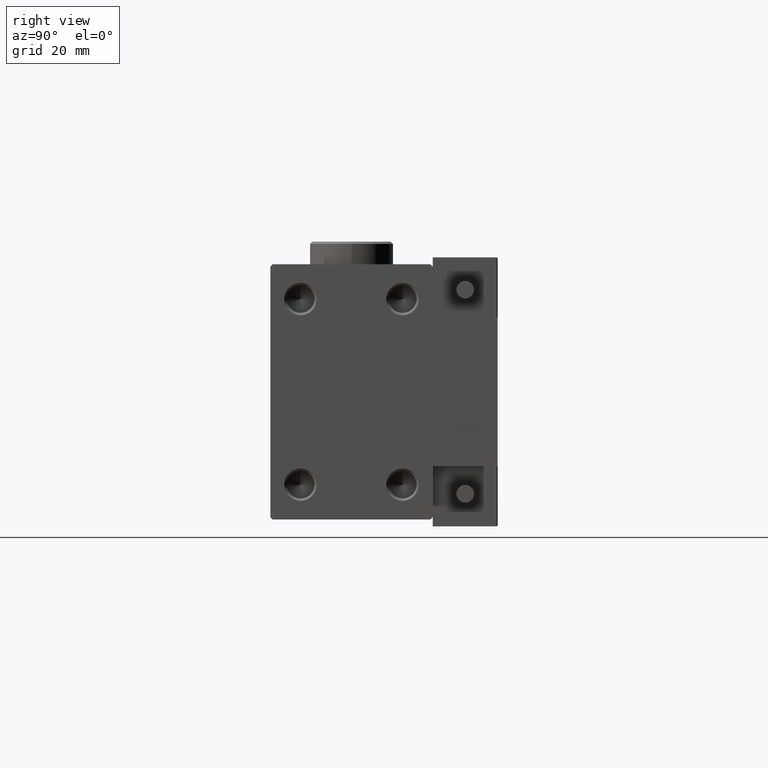
[diagram: clean part render]
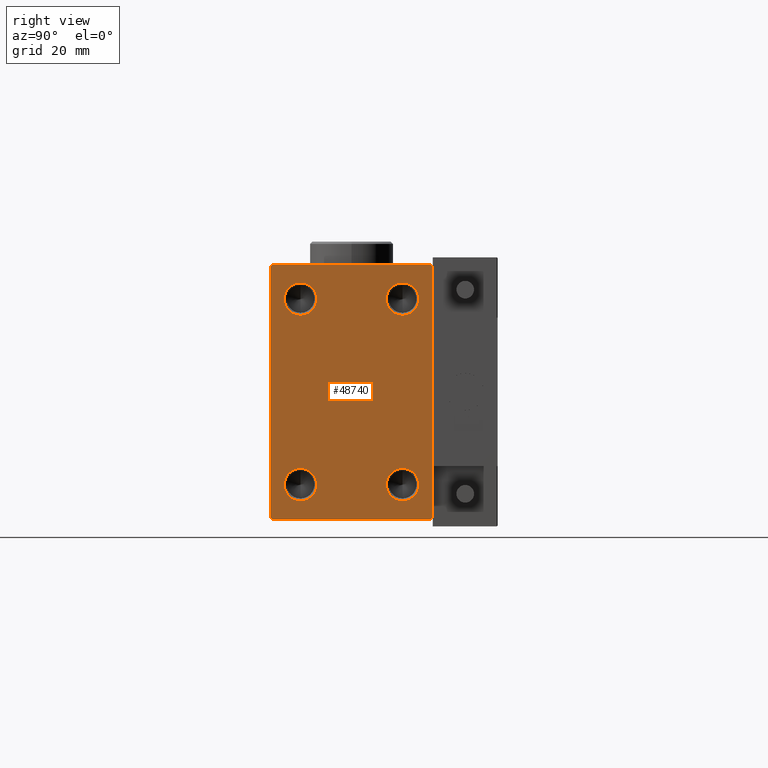
[diagram: same view with one face highlighted and labeled with its STEP entity id]
A machine part, right view. The second image highlights one B-rep face of the part: STEP entity #48740.
In plain terms, the highlighted planar face has unit normal (1, 0, 0).
Its self-contained STEP definition (entity closure, byte-faithful):
#78 = EDGE_CURVE ( 'NONE', #34295, #52429, #16436, .T. ) ;
#120 = VERTEX_POINT ( 'NONE', #15229 ) ;
#621 = ORIENTED_EDGE ( 'NONE', *, *, #50480, .F. ) ;
#668 = FACE_BOUND ( 'NONE', #31216, .T. ) ;
#991 = ORIENTED_EDGE ( 'NONE', *, *, #2944, .T. ) ;
#1157 = EDGE_CURVE ( 'NONE', #32967, #12714, #48101, .T. ) ;
#1854 = CARTESIAN_POINT ( 'NONE',  ( 66.00000000000000000, -22.25000000000000355, -22.25000000000000355 ) ) ;
#2158 = LINE ( 'NONE', #22343, #38728 ) ;
#2188 = CARTESIAN_POINT ( 'NONE',  ( 66.00000000000000000, -17.49999999999999645, -27.50000000000000711 ) ) ;
#2217 = CARTESIAN_POINT ( 'NONE',  ( 66.00000000000000000, -11.00000000000000533, 20.00000000000000711 ) ) ;
#2606 = CARTESIAN_POINT ( 'NONE',  ( 66.00000000000000000, 11.00000000000000178, -20.00000000000000000 ) ) ;
#2729 = VERTEX_POINT ( 'NONE', #49499 ) ;
#2901 = EDGE_CURVE ( 'NONE', #43540, #2729, #26746, .T. ) ;
#2944 = EDGE_CURVE ( 'NONE', #10703, #51775, #42294, .T. ) ;
#3299 = AXIS2_PLACEMENT_3D ( 'NONE', #2606, #47982, #27303 ) ;
#3375 = AXIS2_PLACEMENT_3D ( 'NONE', #36104, #11950, #24416 ) ;
#5001 = EDGE_CURVE ( 'NONE', #10471, #10703, #2158, .T. ) ;
#5466 = EDGE_CURVE ( 'NONE', #33215, #47542, #18571, .T. ) ;
#5937 = CARTESIAN_POINT ( 'NONE',  ( 66.00000000000000000, 17.50000000000000711, -27.50000000000001066 ) ) ;
#6390 = VECTOR ( 'NONE', #25853, 1000.000000000000000 ) ;
#6614 = DIRECTION ( 'NONE',  ( -0.000000000000000000, 0.7071067811865474617, -0.7071067811865474617 ) ) ;
#7622 = CIRCLE ( 'NONE', #3375, 3.499999999999989342 ) ;
#7772 = CARTESIAN_POINT ( 'NONE',  ( 66.00000000000000000, -11.00000000000000533, -20.00000000000000000 ) ) ;
#9068 = AXIS2_PLACEMENT_3D ( 'NONE', #16529, #28732, #32725 ) ;
#9663 = DIRECTION ( 'NONE',  ( 1.000000000000000000, -0.000000000000000000, -0.000000000000000000 ) ) ;
#10304 = ORIENTED_EDGE ( 'NONE', *, *, #46722, .F. ) ;
#10355 = AXIS2_PLACEMENT_3D ( 'NONE', #33334, #17131, #36254 ) ;
#10471 = VERTEX_POINT ( 'NONE', #44369 ) ;
#10598 = LINE ( 'NONE', #1854, #44076 ) ;
#10703 = VERTEX_POINT ( 'NONE', #28371 ) ;
#10899 = VERTEX_POINT ( 'NONE', #18787 ) ;
#11003 = ORIENTED_EDGE ( 'NONE', *, *, #43169, .T. ) ;
#11045 = ORIENTED_EDGE ( 'NONE', *, *, #25439, .T. ) ;
#11901 = CARTESIAN_POINT ( 'NONE',  ( 66.00000000000000000, -11.00000000000000533, -23.49999999999999289 ) ) ;
#11950 = DIRECTION ( 'NONE',  ( 1.000000000000000000, -0.000000000000000000, -0.000000000000000000 ) ) ;
#12356 = FACE_BOUND ( 'NONE', #20277, .T. ) ;
#12714 = VERTEX_POINT ( 'NONE', #13514 ) ;
#12977 = AXIS2_PLACEMENT_3D ( 'NONE', #22941, #39147, #47357 ) ;
#13514 = CARTESIAN_POINT ( 'NONE',  ( 66.00000000000000000, -16.99999999999997868, 27.49999999999998579 ) ) ;
#14147 = CIRCLE ( 'NONE', #9068, 3.499999999999989342 ) ;
#14261 = ORIENTED_EDGE ( 'NONE', *, *, #26278, .T. ) ;
#14540 = CIRCLE ( 'NONE', #48454, 3.499999999999989342 ) ;
#14671 = DIRECTION ( 'NONE',  ( 0.000000000000000000, 1.000000000000000000, -9.912705577010325549E-17 ) ) ;
#15229 = CARTESIAN_POINT ( 'NONE',  ( 66.00000000000000000, 11.00000000000000178, -16.50000000000000711 ) ) ;
#15354 = CIRCLE ( 'NONE', #23013, 3.499999999999989342 ) ;
#15411 = CARTESIAN_POINT ( 'NONE',  ( 66.00000000000000000, 16.99999999999998579, 27.49999999999999289 ) ) ;
#15445 = EDGE_CURVE ( 'NONE', #10899, #10471, #35374, .T. ) ;
#15594 = CARTESIAN_POINT ( 'NONE',  ( 66.00000000000000000, 22.24999999999992895, 22.25000000000008171 ) ) ;
#15717 = DIRECTION ( 'NONE',  ( 0.000000000000000000, 0.000000000000000000, -1.000000000000000000 ) ) ;
#16258 = DIRECTION ( 'NONE',  ( 1.000000000000000000, -0.000000000000000000, -0.000000000000000000 ) ) ;
#16436 = CIRCLE ( 'NONE', #23223, 3.499999999999989342 ) ;
#16529 = CARTESIAN_POINT ( 'NONE',  ( 66.00000000000000000, -11.00000000000000533, 20.00000000000000711 ) ) ;
#16551 = AXIS2_PLACEMENT_3D ( 'NONE', #2217, #9663, #26119 ) ;
#16597 = FACE_OUTER_BOUND ( 'NONE', #16833, .T. ) ;
#16833 = EDGE_LOOP ( 'NONE', ( #50664, #14261, #51311, #11003, #22525, #44204, #991, #11045 ) ) ;
#17131 = DIRECTION ( 'NONE',  ( 1.000000000000000000, 0.000000000000000000, 0.000000000000000000 ) ) ;
#18571 = LINE ( 'NONE', #47479, #36188 ) ;
#18746 = VERTEX_POINT ( 'NONE', #42602 ) ;
#18787 = CARTESIAN_POINT ( 'NONE',  ( 66.00000000000000000, -16.99999999999999289, -27.50000000000000711 ) ) ;
#19232 = CARTESIAN_POINT ( 'NONE',  ( 66.00000000000000000, 11.00000000000000178, -23.49999999999999289 ) ) ;
#20277 = EDGE_LOOP ( 'NONE', ( #10304, #22857 ) ) ;
#20907 = CARTESIAN_POINT ( 'NONE',  ( 66.00000000000000000, -17.49999999999999645, -27.00000000000000711 ) ) ;
#21496 = ORIENTED_EDGE ( 'NONE', *, *, #78, .F. ) ;
#22240 = VERTEX_POINT ( 'NONE', #19232 ) ;
#22343 = CARTESIAN_POINT ( 'NONE',  ( 66.00000000000000000, 22.25000000000000355, -22.25000000000000355 ) ) ;
#22525 = ORIENTED_EDGE ( 'NONE', *, *, #15445, .T. ) ;
#22857 = ORIENTED_EDGE ( 'NONE', *, *, #40975, .F. ) ;
#22941 = CARTESIAN_POINT ( 'NONE',  ( 66.00000000000000000, 11.00000000000000178, 20.00000000000000711 ) ) ;
#23013 = AXIS2_PLACEMENT_3D ( 'NONE', #7772, #16258, #15717 ) ;
#23223 = AXIS2_PLACEMENT_3D ( 'NONE', #39660, #27193, #48414 ) ;
#23516 = EDGE_CURVE ( 'NONE', #120, #22240, #14540, .T. ) ;
#23592 = ORIENTED_EDGE ( 'NONE', *, *, #23516, .F. ) ;
#24089 = DIRECTION ( 'NONE',  ( -0.000000000000000000, -0.7071067811865500152, 0.7071067811865451302 ) ) ;
#24164 = VECTOR ( 'NONE', #44118, 1000.000000000000000 ) ;
#24416 = DIRECTION ( 'NONE',  ( 0.000000000000000000, 0.000000000000000000, -1.000000000000000000 ) ) ;
#24892 = ORIENTED_EDGE ( 'NONE', *, *, #33476, .F. ) ;
#25087 = PLANE ( 'NONE',  #10355 ) ;
#25439 = EDGE_CURVE ( 'NONE', #51775, #32967, #31001, .T. ) ;
#25853 = DIRECTION ( 'NONE',  ( 0.000000000000000000, -1.261617073437677752E-16, 1.000000000000000000 ) ) ;
#26119 = DIRECTION ( 'NONE',  ( 0.000000000000000000, 0.000000000000000000, -1.000000000000000000 ) ) ;
#26278 = EDGE_CURVE ( 'NONE', #12714, #33215, #45548, .T. ) ;
#26746 = CIRCLE ( 'NONE', #16551, 3.499999999999989342 ) ;
#27193 = DIRECTION ( 'NONE',  ( 1.000000000000000000, -0.000000000000000000, -0.000000000000000000 ) ) ;
#27303 = DIRECTION ( 'NONE',  ( 0.000000000000000000, 0.000000000000000000, -1.000000000000000000 ) ) ;
#28371 = CARTESIAN_POINT ( 'NONE',  ( 66.00000000000000000, 17.50000000000000711, -26.99999999999999645 ) ) ;
#28447 = CARTESIAN_POINT ( 'NONE',  ( 66.00000000000000000, 17.50000000000000000, 27.49999999999999289 ) ) ;
#28732 = DIRECTION ( 'NONE',  ( 1.000000000000000000, -0.000000000000000000, -0.000000000000000000 ) ) ;
#29071 = FACE_BOUND ( 'NONE', #42110, .T. ) ;
#29327 = FACE_BOUND ( 'NONE', #32241, .T. ) ;
#29615 = CARTESIAN_POINT ( 'NONE',  ( 66.00000000000000000, -22.24999999999974776, 22.25000000000036593 ) ) ;
#30038 = DIRECTION ( 'NONE',  ( -0.000000000000000000, 0.7071067811865474617, 0.7071067811865474617 ) ) ;
#31001 = LINE ( 'NONE', #15594, #52129 ) ;
#31216 = EDGE_LOOP ( 'NONE', ( #24892, #48737 ) ) ;
#32241 = EDGE_LOOP ( 'NONE', ( #23592, #50285 ) ) ;
#32648 = VECTOR ( 'NONE', #46071, 999.9999999999998863 ) ;
#32688 = CARTESIAN_POINT ( 'NONE',  ( 66.00000000000000000, 11.00000000000000178, -20.00000000000000000 ) ) ;
#32725 = DIRECTION ( 'NONE',  ( 0.000000000000000000, 0.000000000000000000, -1.000000000000000000 ) ) ;
#32967 = VERTEX_POINT ( 'NONE', #15411 ) ;
#33215 = VERTEX_POINT ( 'NONE', #41278 ) ;
#33334 = CARTESIAN_POINT ( 'NONE',  ( 66.00000000000000000, 0.000000000000000000, 0.000000000000000000 ) ) ;
#33476 = EDGE_CURVE ( 'NONE', #2729, #43540, #14147, .T. ) ;
#34295 = VERTEX_POINT ( 'NONE', #51147 ) ;
#34842 = CARTESIAN_POINT ( 'NONE',  ( 66.00000000000000000, 17.50000000000000000, 26.99999999999998224 ) ) ;
#35374 = LINE ( 'NONE', #2188, #44850 ) ;
#36104 = CARTESIAN_POINT ( 'NONE',  ( 66.00000000000000000, -11.00000000000000533, -20.00000000000000000 ) ) ;
#36188 = VECTOR ( 'NONE', #39269, 1000.000000000000000 ) ;
#36254 = DIRECTION ( 'NONE',  ( 0.000000000000000000, 0.000000000000000000, -1.000000000000000000 ) ) ;
#36676 = DIRECTION ( 'NONE',  ( 0.000000000000000000, 0.000000000000000000, -1.000000000000000000 ) ) ;
#38728 = VECTOR ( 'NONE', #30038, 1000.000000000000114 ) ;
#38804 = EDGE_CURVE ( 'NONE', #22240, #120, #51658, .T. ) ;
#39147 = DIRECTION ( 'NONE',  ( 1.000000000000000000, -0.000000000000000000, -0.000000000000000000 ) ) ;
#39269 = DIRECTION ( 'NONE',  ( 0.000000000000000000, 0.000000000000000000, -1.000000000000000000 ) ) ;
#39660 = CARTESIAN_POINT ( 'NONE',  ( 66.00000000000000000, 11.00000000000000178, 20.00000000000000711 ) ) ;
#40641 = DIRECTION ( 'NONE',  ( 1.000000000000000000, -0.000000000000000000, -0.000000000000000000 ) ) ;
#40975 = EDGE_CURVE ( 'NONE', #49734, #18746, #7622, .T. ) ;
#41278 = CARTESIAN_POINT ( 'NONE',  ( 66.00000000000000000, -17.49999999999999645, 26.99999999999998579 ) ) ;
#41800 = CIRCLE ( 'NONE', #12977, 3.499999999999989342 ) ;
#42110 = EDGE_LOOP ( 'NONE', ( #21496, #621 ) ) ;
#42294 = LINE ( 'NONE', #5937, #6390 ) ;
#42602 = CARTESIAN_POINT ( 'NONE',  ( 66.00000000000000000, -11.00000000000000533, -16.50000000000000711 ) ) ;
#43169 = EDGE_CURVE ( 'NONE', #47542, #10899, #10598, .T. ) ;
#43540 = VERTEX_POINT ( 'NONE', #44772 ) ;
#44076 = VECTOR ( 'NONE', #6614, 1000.000000000000114 ) ;
#44118 = DIRECTION ( 'NONE',  ( 0.000000000000000000, -1.000000000000000000, -1.982541115402065356E-16 ) ) ;
#44204 = ORIENTED_EDGE ( 'NONE', *, *, #5001, .T. ) ;
#44369 = CARTESIAN_POINT ( 'NONE',  ( 66.00000000000000000, 16.99999999999999289, -27.50000000000001066 ) ) ;
#44772 = CARTESIAN_POINT ( 'NONE',  ( 66.00000000000000000, -11.00000000000000533, 16.50000000000001421 ) ) ;
#44850 = VECTOR ( 'NONE', #14671, 1000.000000000000000 ) ;
#45548 = LINE ( 'NONE', #29615, #32648 ) ;
#46071 = DIRECTION ( 'NONE',  ( 0.000000000000000000, -0.7071067811865574537, -0.7071067811865376918 ) ) ;
#46722 = EDGE_CURVE ( 'NONE', #18746, #49734, #15354, .T. ) ;
#47357 = DIRECTION ( 'NONE',  ( 0.000000000000000000, 0.000000000000000000, -1.000000000000000000 ) ) ;
#47479 = CARTESIAN_POINT ( 'NONE',  ( 66.00000000000000000, -17.49999999999999645, 27.49999999999998579 ) ) ;
#47542 = VERTEX_POINT ( 'NONE', #20907 ) ;
#47982 = DIRECTION ( 'NONE',  ( 1.000000000000000000, -0.000000000000000000, -0.000000000000000000 ) ) ;
#48101 = LINE ( 'NONE', #28447, #24164 ) ;
#48414 = DIRECTION ( 'NONE',  ( 0.000000000000000000, 0.000000000000000000, -1.000000000000000000 ) ) ;
#48454 = AXIS2_PLACEMENT_3D ( 'NONE', #32688, #40641, #36676 ) ;
#48737 = ORIENTED_EDGE ( 'NONE', *, *, #2901, .F. ) ;
#48740 = ADVANCED_FACE ( 'NONE', ( #29071, #668, #12356, #29327, #16597 ), #25087, .T. ) ;
#49499 = CARTESIAN_POINT ( 'NONE',  ( 66.00000000000000000, -11.00000000000000533, 23.50000000000000000 ) ) ;
#49734 = VERTEX_POINT ( 'NONE', #11901 ) ;
#50285 = ORIENTED_EDGE ( 'NONE', *, *, #38804, .F. ) ;
#50480 = EDGE_CURVE ( 'NONE', #52429, #34295, #41800, .T. ) ;
#50664 = ORIENTED_EDGE ( 'NONE', *, *, #1157, .T. ) ;
#51147 = CARTESIAN_POINT ( 'NONE',  ( 66.00000000000000000, 11.00000000000000178, 23.50000000000000000 ) ) ;
#51311 = ORIENTED_EDGE ( 'NONE', *, *, #5466, .T. ) ;
#51658 = CIRCLE ( 'NONE', #3299, 3.499999999999989342 ) ;
#51775 = VERTEX_POINT ( 'NONE', #34842 ) ;
#52109 = CARTESIAN_POINT ( 'NONE',  ( 66.00000000000000000, 11.00000000000000178, 16.50000000000001421 ) ) ;
#52129 = VECTOR ( 'NONE', #24089, 1000.000000000000114 ) ;
#52429 = VERTEX_POINT ( 'NONE', #52109 ) ;